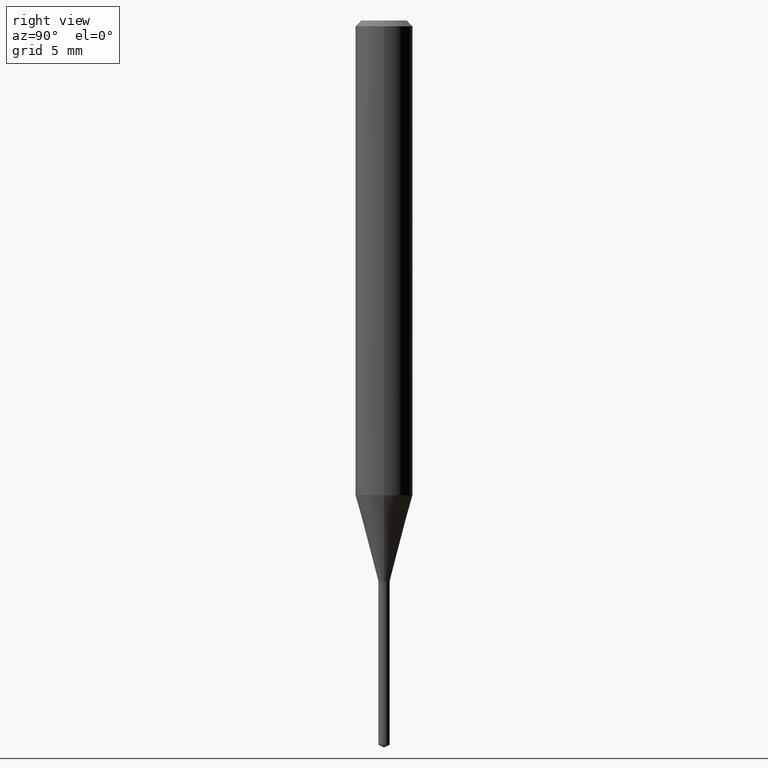
[diagram: clean part render]
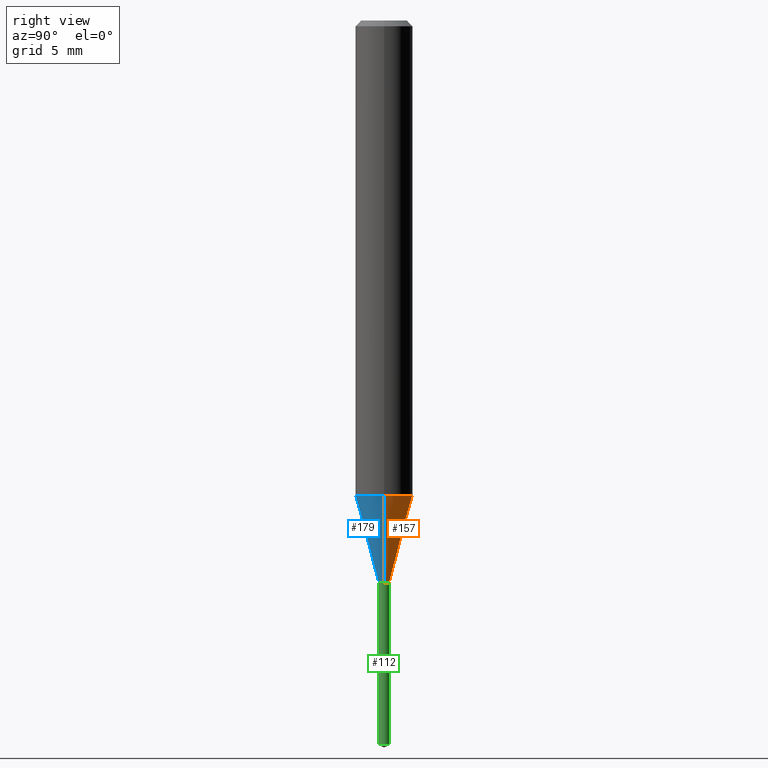
[diagram: same view with three faces highlighted in distinct colors, each labeled with its STEP entity id]
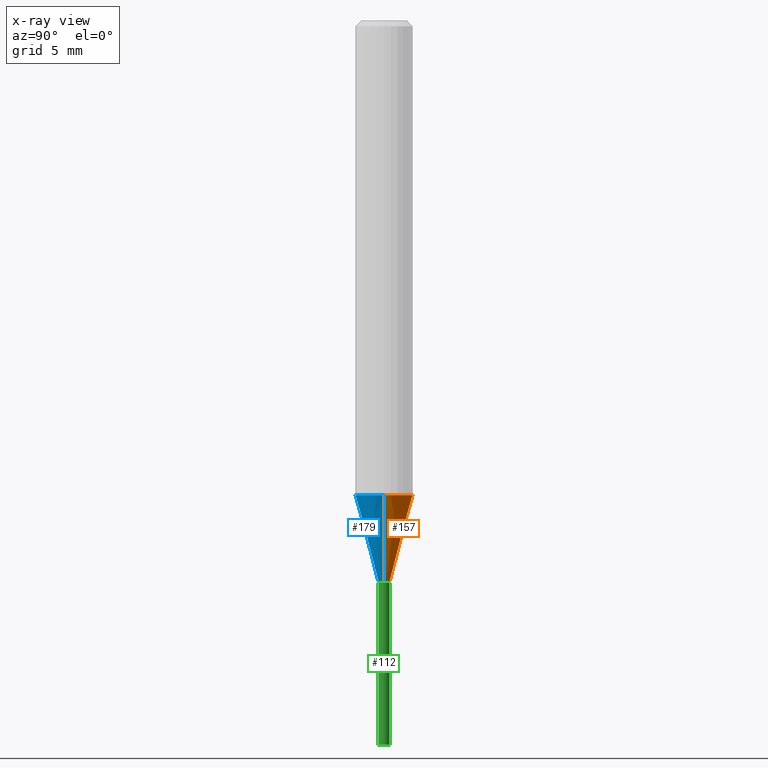
[diagram: x-ray of the same camera — body ghosted, the three highlighted faces saturated]
A machine part, right view with three faces highlighted in distinct colors.
The next image is the same camera in x-ray (body ghosted, the three faces saturated) — at least one of them is partly hidden behind the body in this view.
Their STEP definitions:

[orange] entity #157 — the highlighted conical surface has half-angle 15 deg.
#1 = ORIENTED_EDGE ( 'NONE', *, *, #250, .T. ) ;
#14 = CARTESIAN_POINT ( 'NONE',  ( 2.822071002337647144E-29, -4.029169465024989587E-15, -1.153999999999999915 ) ) ;
#19 = VECTOR ( 'NONE', #234, 39.37007874015747433 ) ;
#31 = DIRECTION ( 'NONE',  ( -0.2588190451025213501, 5.211531920934551042E-15, 0.9659258262890682012 ) ) ;
#36 = AXIS2_PLACEMENT_3D ( 'NONE', #487, #180, #154 ) ;
#50 = DIRECTION ( 'NONE',  ( -2.445468806185136597E-29, 3.491481338843145583E-15, 1.000000000000000000 ) ) ;
#52 = CARTESIAN_POINT ( 'NONE',  ( -0.01159999999999999920, -3.951983729685082876E-15, -1.153999999999999915 ) ) ;
#58 = VERTEX_POINT ( 'NONE', #109 ) ;
#67 = ORIENTED_EDGE ( 'NONE', *, *, #400, .T. ) ;
#87 = CARTESIAN_POINT ( 'NONE',  ( 0.01159999999999999920, -4.110171832086150508E-15, -1.153999999999999915 ) ) ;
#99 = ORIENTED_EDGE ( 'NONE', *, *, #456, .F. ) ;
#109 = CARTESIAN_POINT ( 'NONE',  ( -0.05905000000000011628, -2.991302175709703364E-15, -0.9769141891808567069 ) ) ;
#115 = DIRECTION ( 'NONE',  ( -2.445468806185136597E-29, 3.491481338843145583E-15, 1.000000000000000000 ) ) ;
#122 = CIRCLE ( 'NONE', #36, 0.05905000000000011628 ) ;
#146 = VERTEX_POINT ( 'NONE', #295 ) ;
#154 = DIRECTION ( 'NONE',  ( 1.000000000000000000, -6.982962677686266711E-15, 0.000000000000000000 ) ) ;
#157 = ADVANCED_FACE ( 'NONE', ( #482 ), #335, .T. ) ;
#170 = DIRECTION ( 'NONE',  ( 1.000000000000000000, -6.982962677686266711E-15, 0.000000000000000000 ) ) ;
#180 = DIRECTION ( 'NONE',  ( -2.445468806185136597E-29, 3.491481338843145583E-15, 1.000000000000000000 ) ) ;
#214 = CIRCLE ( 'NONE', #440, 0.01159999999999999920 ) ;
#234 = DIRECTION ( 'NONE',  ( 0.2588190451025213501, 1.565188264969621968E-15, 0.9659258262890682012 ) ) ;
#235 = VERTEX_POINT ( 'NONE', #385 ) ;
#236 = VECTOR ( 'NONE', #31, 39.37007874015747433 ) ;
#243 = ORIENTED_EDGE ( 'NONE', *, *, #361, .F. ) ;
#250 = EDGE_CURVE ( 'NONE', #235, #389, #214, .T. ) ;
#295 = CARTESIAN_POINT ( 'NONE',  ( 0.05905000000000011628, -3.823221607293418566E-15, -0.9769141891808567069 ) ) ;
#331 = LINE ( 'NONE', #442, #236 ) ;
#335 = CONICAL_SURFACE ( 'NONE', #451, 0.01159999999999999920, 0.2617993877991500740 ) ;
#349 = EDGE_LOOP ( 'NONE', ( #1, #67, #99, #243 ) ) ;
#361 = EDGE_CURVE ( 'NONE', #235, #146, #420, .T. ) ;
#385 = CARTESIAN_POINT ( 'NONE',  ( 0.01159999999999999920, -4.110171832086150508E-15, -1.153999999999999915 ) ) ;
#389 = VERTEX_POINT ( 'NONE', #52 ) ;
#397 = CARTESIAN_POINT ( 'NONE',  ( 2.822071002337647144E-29, -4.029169465024989587E-15, -1.153999999999999915 ) ) ;
#400 = EDGE_CURVE ( 'NONE', #389, #58, #331, .T. ) ;
#420 = LINE ( 'NONE', #87, #19 ) ;
#440 = AXIS2_PLACEMENT_3D ( 'NONE', #14, #50, #170 ) ;
#442 = CARTESIAN_POINT ( 'NONE',  ( -0.01159999999999999920, -3.946746507676818365E-15, -1.153999999999999915 ) ) ;
#443 = DIRECTION ( 'NONE',  ( 1.000000000000000000, -6.982962677686266711E-15, 0.000000000000000000 ) ) ;
#451 = AXIS2_PLACEMENT_3D ( 'NONE', #397, #115, #443 ) ;
#456 = EDGE_CURVE ( 'NONE', #146, #58, #122, .T. ) ;
#482 = FACE_OUTER_BOUND ( 'NONE', #349, .T. ) ;
#487 = CARTESIAN_POINT ( 'NONE',  ( 2.389013175961430346E-29, -3.410877661176043645E-15, -0.9769141891808567069 ) ) ;

[blue] entity #179 — the highlighted conical surface has half-angle 15 deg.
#4 = CONICAL_SURFACE ( 'NONE', #187, 0.01159999999999999920, 0.2617993877991500740 ) ;
#8 = ORIENTED_EDGE ( 'NONE', *, *, #400, .F. ) ;
#19 = VECTOR ( 'NONE', #234, 39.37007874015747433 ) ;
#31 = DIRECTION ( 'NONE',  ( -0.2588190451025213501, 5.211531920934551042E-15, 0.9659258262890682012 ) ) ;
#34 = CIRCLE ( 'NONE', #474, 0.05905000000000011628 ) ;
#52 = CARTESIAN_POINT ( 'NONE',  ( -0.01159999999999999920, -3.951983729685082876E-15, -1.153999999999999915 ) ) ;
#58 = VERTEX_POINT ( 'NONE', #109 ) ;
#65 = EDGE_CURVE ( 'NONE', #58, #146, #34, .T. ) ;
#87 = CARTESIAN_POINT ( 'NONE',  ( 0.01159999999999999920, -4.110171832086150508E-15, -1.153999999999999915 ) ) ;
#107 = AXIS2_PLACEMENT_3D ( 'NONE', #391, #210, #145 ) ;
#108 = ORIENTED_EDGE ( 'NONE', *, *, #361, .T. ) ;
#109 = CARTESIAN_POINT ( 'NONE',  ( -0.05905000000000011628, -2.991302175709703364E-15, -0.9769141891808567069 ) ) ;
#145 = DIRECTION ( 'NONE',  ( 1.000000000000000000, -6.982962677686266711E-15, 0.000000000000000000 ) ) ;
#146 = VERTEX_POINT ( 'NONE', #295 ) ;
#179 = ADVANCED_FACE ( 'NONE', ( #264 ), #4, .T. ) ;
#183 = DIRECTION ( 'NONE',  ( -2.445468806185136597E-29, 3.491481338843145583E-15, 1.000000000000000000 ) ) ;
#187 = AXIS2_PLACEMENT_3D ( 'NONE', #330, #183, #408 ) ;
#210 = DIRECTION ( 'NONE',  ( -2.445468806185136597E-29, 3.491481338843145583E-15, 1.000000000000000000 ) ) ;
#216 = CIRCLE ( 'NONE', #107, 0.01159999999999999920 ) ;
#224 = CARTESIAN_POINT ( 'NONE',  ( 2.389013175961430346E-29, -3.410877661176043645E-15, -0.9769141891808567069 ) ) ;
#234 = DIRECTION ( 'NONE',  ( 0.2588190451025213501, 1.565188264969621968E-15, 0.9659258262890682012 ) ) ;
#235 = VERTEX_POINT ( 'NONE', #385 ) ;
#236 = VECTOR ( 'NONE', #31, 39.37007874015747433 ) ;
#264 = FACE_OUTER_BOUND ( 'NONE', #356, .T. ) ;
#275 = DIRECTION ( 'NONE',  ( -2.445468806185136597E-29, 3.491481338843145583E-15, 1.000000000000000000 ) ) ;
#285 = DIRECTION ( 'NONE',  ( 1.000000000000000000, -6.982962677686266711E-15, 0.000000000000000000 ) ) ;
#295 = CARTESIAN_POINT ( 'NONE',  ( 0.05905000000000011628, -3.823221607293418566E-15, -0.9769141891808567069 ) ) ;
#302 = EDGE_CURVE ( 'NONE', #389, #235, #216, .T. ) ;
#318 = ORIENTED_EDGE ( 'NONE', *, *, #65, .F. ) ;
#330 = CARTESIAN_POINT ( 'NONE',  ( 2.822071002337647144E-29, -4.029169465024989587E-15, -1.153999999999999915 ) ) ;
#331 = LINE ( 'NONE', #442, #236 ) ;
#356 = EDGE_LOOP ( 'NONE', ( #8, #462, #108, #318 ) ) ;
#361 = EDGE_CURVE ( 'NONE', #235, #146, #420, .T. ) ;
#385 = CARTESIAN_POINT ( 'NONE',  ( 0.01159999999999999920, -4.110171832086150508E-15, -1.153999999999999915 ) ) ;
#389 = VERTEX_POINT ( 'NONE', #52 ) ;
#391 = CARTESIAN_POINT ( 'NONE',  ( 2.822071002337647144E-29, -4.029169465024989587E-15, -1.153999999999999915 ) ) ;
#400 = EDGE_CURVE ( 'NONE', #389, #58, #331, .T. ) ;
#408 = DIRECTION ( 'NONE',  ( 1.000000000000000000, -6.982962677686266711E-15, 0.000000000000000000 ) ) ;
#420 = LINE ( 'NONE', #87, #19 ) ;
#442 = CARTESIAN_POINT ( 'NONE',  ( -0.01159999999999999920, -3.946746507676818365E-15, -1.153999999999999915 ) ) ;
#462 = ORIENTED_EDGE ( 'NONE', *, *, #302, .T. ) ;
#474 = AXIS2_PLACEMENT_3D ( 'NONE', #224, #275, #285 ) ;

[green] entity #112 — the highlighted cylindrical surface (edge-blend (fillet) strip) has radius 0.2946 mm, axis along (-0, 0, 1).
#3 = CYLINDRICAL_SURFACE ( 'NONE', #248, 0.01159999999999999920 ) ;
#21 = FACE_OUTER_BOUND ( 'NONE', #281, .T. ) ;
#39 = CIRCLE ( 'NONE', #384, 0.01159999999999999920 ) ;
#42 = DIRECTION ( 'NONE',  ( -2.445457056059012515E-29, 3.491498165692530705E-15, 1.000000000000000000 ) ) ;
#49 = VERTEX_POINT ( 'NONE', #156 ) ;
#54 = DIRECTION ( 'NONE',  ( -2.445457056059012515E-29, 3.491498165692530705E-15, 1.000000000000000000 ) ) ;
#66 = DIRECTION ( 'NONE',  ( -2.445457056059012515E-29, 3.491498165692530705E-15, 1.000000000000000000 ) ) ;
#89 = DIRECTION ( 'NONE',  ( -6.982962677686266711E-15, -1.000000000000000000, 0.000000000000000000 ) ) ;
#96 = ORIENTED_EDGE ( 'NONE', *, *, #294, .T. ) ;
#111 = CARTESIAN_POINT ( 'NONE',  ( 8.242295734820810070E-17, 0.01159999999999595729, -1.157499999999999973 ) ) ;
#112 = ADVANCED_FACE ( 'NONE', ( #21 ), #3, .T. ) ;
#119 = DIRECTION ( 'NONE',  ( -2.445457056059012515E-29, 3.491498165692530705E-15, 1.000000000000000000 ) ) ;
#123 = VERTEX_POINT ( 'NONE', #209 ) ;
#134 = CARTESIAN_POINT ( 'NONE',  ( 8.242295734819991627E-17, 0.01159999999999595729, -1.157499999999999973 ) ) ;
#156 = CARTESIAN_POINT ( 'NONE',  ( -8.100236706113237413E-17, -0.01160000000000404284, -1.157499999999999973 ) ) ;
#159 = VECTOR ( 'NONE', #119, 39.37007874015748143 ) ;
#169 = ORIENTED_EDGE ( 'NONE', *, *, #171, .F. ) ;
#171 = EDGE_CURVE ( 'NONE', #315, #49, #255, .T. ) ;
#200 = LINE ( 'NONE', #134, #401 ) ;
#209 = CARTESIAN_POINT ( 'NONE',  ( 8.242295734820805139E-17, 0.01159999999999478983, -1.490690831165402130 ) ) ;
#220 = EDGE_CURVE ( 'NONE', #49, #431, #39, .T. ) ;
#248 = AXIS2_PLACEMENT_3D ( 'NONE', #273, #54, #89 ) ;
#255 = LINE ( 'NONE', #441, #159 ) ;
#263 = AXIS2_PLACEMENT_3D ( 'NONE', #477, #66, #396 ) ;
#265 = DIRECTION ( 'NONE',  ( -6.982962677686266711E-15, -1.000000000000000000, 0.000000000000000000 ) ) ;
#273 = CARTESIAN_POINT ( 'NONE',  ( 2.830630143159295633E-29, -4.041389649710940900E-15, -1.157499999999999973 ) ) ;
#281 = EDGE_LOOP ( 'NONE', ( #96, #469, #372, #169 ) ) ;
#294 = EDGE_CURVE ( 'NONE', #315, #123, #360, .T. ) ;
#315 = VERTEX_POINT ( 'NONE', #464 ) ;
#355 = DIRECTION ( 'NONE',  ( -2.445457056059012515E-29, 3.491498165692530705E-15, 1.000000000000000000 ) ) ;
#360 = CIRCLE ( 'NONE', #263, 0.01159999999999999920 ) ;
#372 = ORIENTED_EDGE ( 'NONE', *, *, #220, .F. ) ;
#377 = CARTESIAN_POINT ( 'NONE',  ( 2.830630143159295633E-29, -4.041389649710940900E-15, -1.157499999999999973 ) ) ;
#384 = AXIS2_PLACEMENT_3D ( 'NONE', #377, #42, #265 ) ;
#390 = EDGE_CURVE ( 'NONE', #123, #431, #200, .T. ) ;
#396 = DIRECTION ( 'NONE',  ( -6.982962677686266711E-15, -1.000000000000000000, 0.000000000000000000 ) ) ;
#401 = VECTOR ( 'NONE', #355, 39.37007874015748143 ) ;
#431 = VERTEX_POINT ( 'NONE', #111 ) ;
#441 = CARTESIAN_POINT ( 'NONE',  ( -8.100236706113237413E-17, -0.01160000000000404284, -1.157499999999999973 ) ) ;
#464 = CARTESIAN_POINT ( 'NONE',  ( -8.100236706112417737E-17, -0.01160000000000520164, -1.490690831165402130 ) ) ;
#469 = ORIENTED_EDGE ( 'NONE', *, *, #390, .T. ) ;
#477 = CARTESIAN_POINT ( 'NONE',  ( 3.645434012246895852E-29, -5.204724825550511922E-15, -1.490690831165402130 ) ) ;